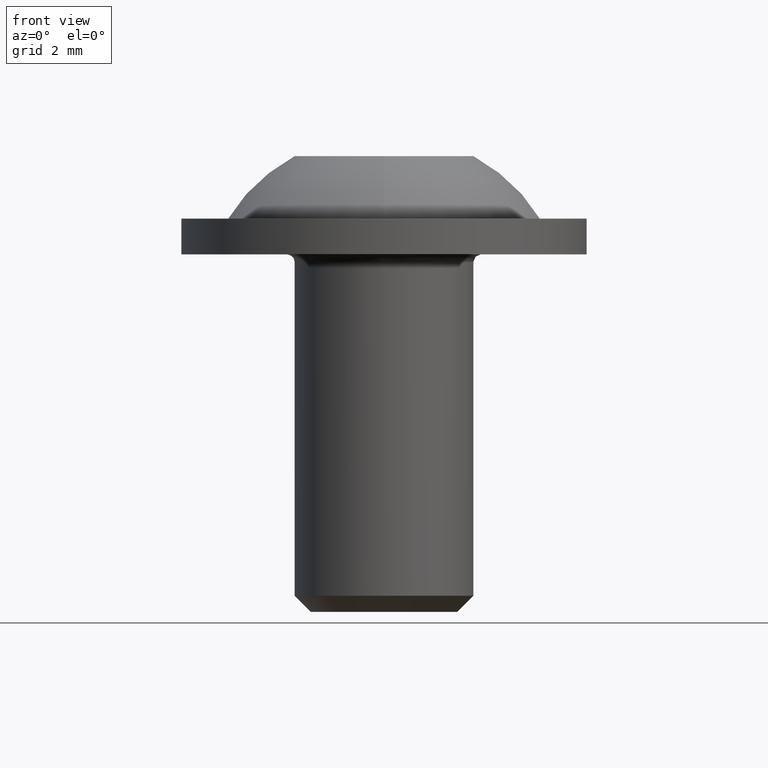
[diagram: clean part render]
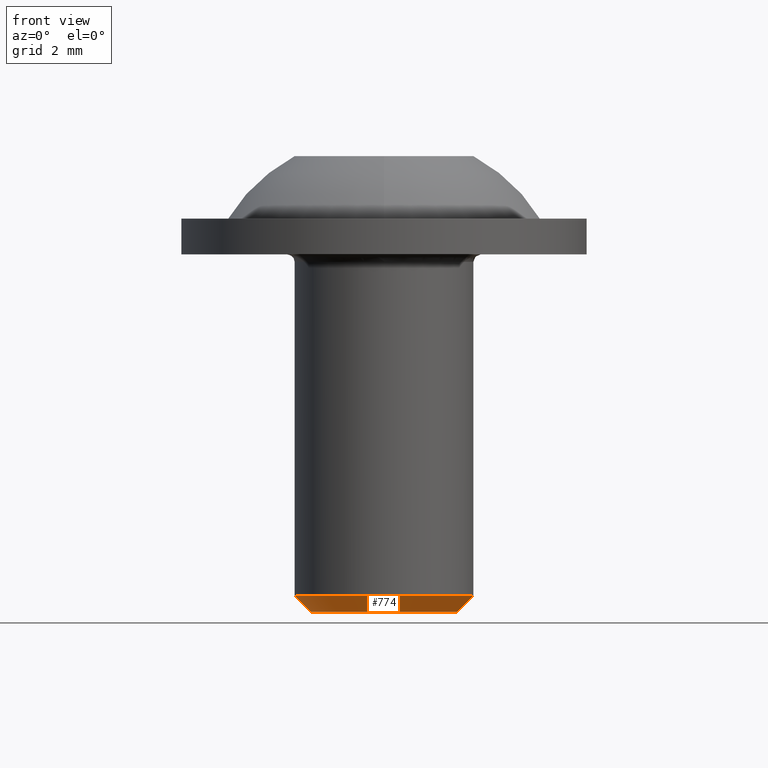
[diagram: same view with one face highlighted and labeled with its STEP entity id]
A machine part, front view. The second image highlights one B-rep face of the part: STEP entity #774.
In plain terms, the highlighted conical surface has half-angle 45 deg.
Its self-contained STEP definition (entity closure, byte-faithful):
#10 = LINE ( 'NONE', #789, #409 ) ;
#19 = VERTEX_POINT ( 'NONE', #701 ) ;
#41 = CARTESIAN_POINT ( 'NONE',  ( -2.544353616684700200E-015, -2.544353616684700200E-015, -11.45875000000000000 ) ) ;
#96 = LINE ( 'NONE', #430, #401 ) ;
#114 = AXIS2_PLACEMENT_3D ( 'NONE', #710, #775, #589 ) ;
#130 = DIRECTION ( 'NONE',  ( 1.000000000000000000, 0.0000000000000000000, 0.0000000000000000000 ) ) ;
#194 = EDGE_CURVE ( 'NONE', #19, #848, #374, .T. ) ;
#247 = VERTEX_POINT ( 'NONE', #389 ) ;
#260 = CONICAL_SURFACE ( 'NONE', #740, 3.000000000099587000, 0.7853981634499595000 ) ;
#283 = CARTESIAN_POINT ( 'NONE',  ( 2.458749999846074500, -2.700840130280119700E-015, -12.00000000011414000 ) ) ;
#305 = DIRECTION ( 'NONE',  ( 0.7071067812236787600, 2.044391222069280500E-016, 0.7071067811494162700 ) ) ;
#334 = AXIS2_PLACEMENT_3D ( 'NONE', #41, #769, #630 ) ;
#335 = VERTEX_POINT ( 'NONE', #381 ) ;
#374 = CIRCLE ( 'NONE', #114, 2.458749999846077100 ) ;
#380 = DIRECTION ( 'NONE',  ( -0.7071067812236783200, 2.910347278350246500E-016, 0.7071067811494167200 ) ) ;
#381 = CARTESIAN_POINT ( 'NONE',  ( -3.000000000017062800, -2.176959576943944400E-015, -11.45875000000000000 ) ) ;
#389 = CARTESIAN_POINT ( 'NONE',  ( 3.000000000017055700, -2.544353616690240400E-015, -11.45875000000000000 ) ) ;
#401 = VECTOR ( 'NONE', #305, 1000.000000000000000 ) ;
#409 = VECTOR ( 'NONE', #380, 1000.000000000000000 ) ;
#430 = CARTESIAN_POINT ( 'NONE',  ( 3.000000000099584300, -2.544353616666379700E-015, -11.45874999991747200 ) ) ;
#464 = DIRECTION ( 'NONE',  ( 2.891205793198703000E-016, 2.891205793198703000E-016, 1.000000000000000000 ) ) ;
#547 = ORIENTED_EDGE ( 'NONE', *, *, #194, .T. ) ;
#588 = EDGE_CURVE ( 'NONE', #335, #247, #665, .T. ) ;
#589 = DIRECTION ( 'NONE',  ( 1.000000000000000000, 0.0000000000000000000, 0.0000000000000000000 ) ) ;
#629 = EDGE_CURVE ( 'NONE', #848, #247, #96, .T. ) ;
#630 = DIRECTION ( 'NONE',  ( -1.000000000000000000, 0.0000000000000000000, 0.0000000000000000000 ) ) ;
#665 = CIRCLE ( 'NONE', #334, 3.000000000000000000 ) ;
#676 = EDGE_CURVE ( 'NONE', #19, #335, #10, .T. ) ;
#701 = CARTESIAN_POINT ( 'NONE',  ( -2.458749999846079800, -2.288344837754790200E-015, -12.00000000011414000 ) ) ;
#707 = FACE_OUTER_BOUND ( 'NONE', #715, .T. ) ;
#709 = CARTESIAN_POINT ( 'NONE',  ( -2.602085213965211000E-015, -2.544353616666379700E-015, -11.45874999991747200 ) ) ;
#710 = CARTESIAN_POINT ( 'NONE',  ( -2.758571727578951000E-015, -2.700840130280119700E-015, -12.00000000011414000 ) ) ;
#715 = EDGE_LOOP ( 'NONE', ( #757, #547, #801, #736 ) ) ;
#736 = ORIENTED_EDGE ( 'NONE', *, *, #588, .F. ) ;
#740 = AXIS2_PLACEMENT_3D ( 'NONE', #709, #464, #130 ) ;
#757 = ORIENTED_EDGE ( 'NONE', *, *, #676, .F. ) ;
#769 = DIRECTION ( 'NONE',  ( 2.220446049250310100E-016, 2.220446049250310100E-016, 1.000000000000000000 ) ) ;
#774 = ADVANCED_FACE ( 'NONE', ( #707 ), #260, .T. ) ;
#775 = DIRECTION ( 'NONE',  ( 2.891205793198703000E-016, 2.891205793198703000E-016, 1.000000000000000000 ) ) ;
#789 = CARTESIAN_POINT ( 'NONE',  ( -3.000000000099589700, -2.176959576909977700E-015, -11.45874999991747200 ) ) ;
#801 = ORIENTED_EDGE ( 'NONE', *, *, #629, .T. ) ;
#848 = VERTEX_POINT ( 'NONE', #283 ) ;